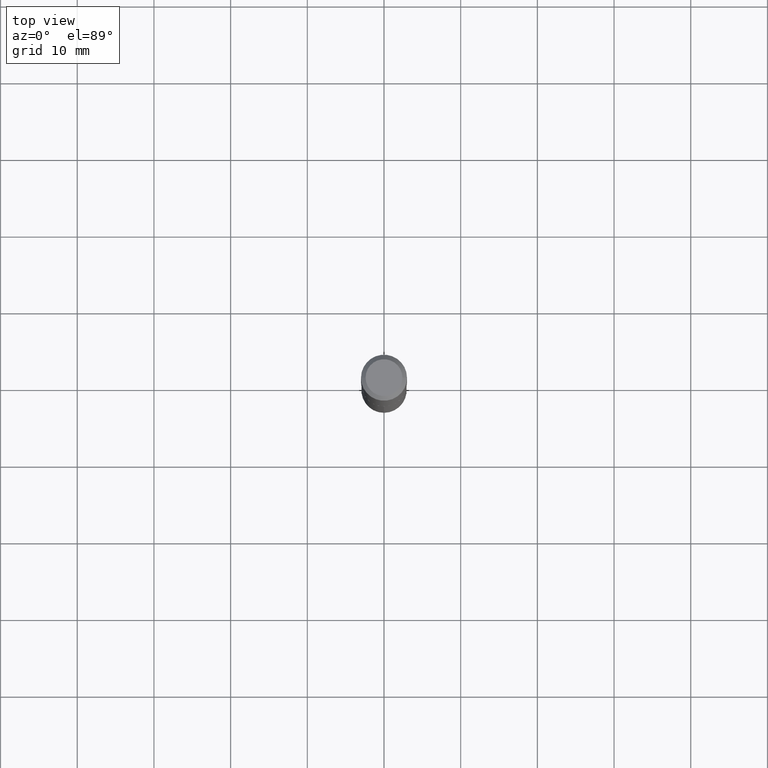
[diagram: clean part render]
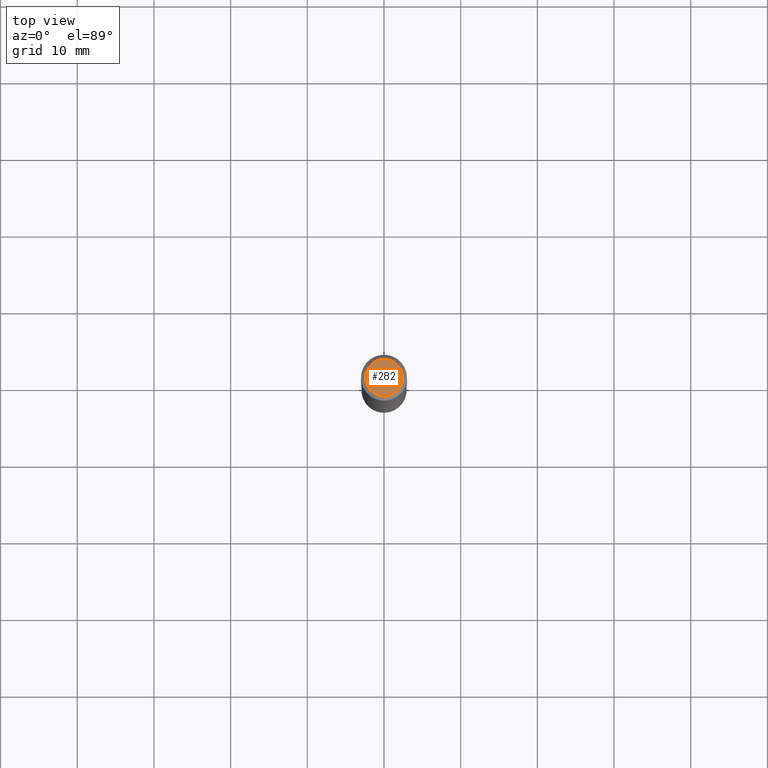
[diagram: same view with one face highlighted and labeled with its STEP entity id]
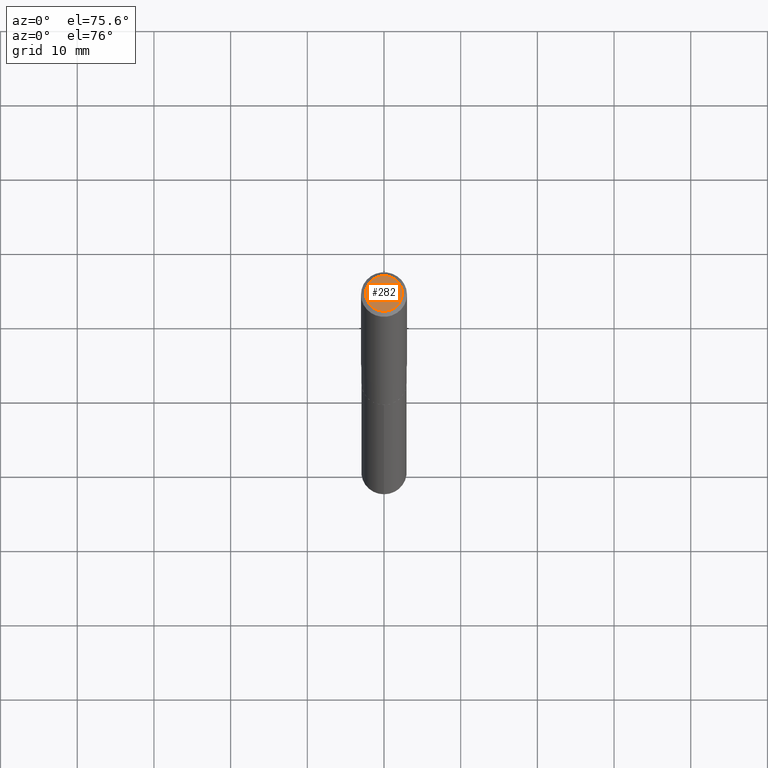
[diagram: same view with one face highlighted and labeled with its STEP entity id]
A machine part, top view. The second image highlights one B-rep face of the part: STEP entity #282.
A second angle (auxiliary view) of the same face is appended — the face is thin or edge-on in the first view.
In plain terms, the highlighted planar face has unit normal (0, -0, -1).
Its self-contained STEP definition (entity closure, byte-faithful):
#28 = CIRCLE ( 'NONE', #174, 0.09447999999999998066 ) ;
#52 = DIRECTION ( 'NONE',  ( -2.445468806185136597E-29, 3.491481338843145583E-15, 1.000000000000000000 ) ) ;
#83 = FACE_OUTER_BOUND ( 'NONE', #96, .T. ) ;
#90 = ORIENTED_EDGE ( 'NONE', *, *, #320, .T. ) ;
#96 = EDGE_LOOP ( 'NONE', ( #479, #90 ) ) ;
#129 = EDGE_CURVE ( 'NONE', #167, #214, #28, .T. ) ;
#159 = DIRECTION ( 'NONE',  ( 2.438088387897960049E-29, -3.491481338843145188E-15, -1.000000000000000000 ) ) ;
#167 = VERTEX_POINT ( 'NONE', #168 ) ;
#168 = CARTESIAN_POINT ( 'NONE',  ( -0.09447999999999998066, 7.009847083995354710E-16, -1.928573779297727792E-17 ) ) ;
#170 = CIRCLE ( 'NONE', #442, 0.09447999999999998066 ) ;
#174 = AXIS2_PLACEMENT_3D ( 'NONE', #315, #467, #427 ) ;
#180 = AXIS2_PLACEMENT_3D ( 'NONE', #488, #159, #230 ) ;
#186 = CARTESIAN_POINT ( 'NONE',  ( 0.09447999999999998066, -7.704367267948738690E-16, -1.928573779296752193E-17 ) ) ;
#214 = VERTEX_POINT ( 'NONE', #186 ) ;
#230 = DIRECTION ( 'NONE',  ( -1.000000000000000000, 6.982962677686265922E-15, -4.876176775795935793E-29 ) ) ;
#280 = DIRECTION ( 'NONE',  ( 1.000000000000000000, -6.982962677686267499E-15, 4.875432709231658792E-29 ) ) ;
#282 = ADVANCED_FACE ( 'NONE', ( #83 ), #342, .F. ) ;
#315 = CARTESIAN_POINT ( 'NONE',  ( 4.716267017698007905E-46, -6.733579360998555036E-32, -1.928573779297252010E-17 ) ) ;
#320 = EDGE_CURVE ( 'NONE', #214, #167, #170, .T. ) ;
#342 = PLANE ( 'NONE',  #180 ) ;
#427 = DIRECTION ( 'NONE',  ( 1.000000000000000000, -6.982962677686267499E-15, 4.875432709231658792E-29 ) ) ;
#432 = CARTESIAN_POINT ( 'NONE',  ( 4.716267017698007905E-46, -6.733579360998555036E-32, -1.928573779297252010E-17 ) ) ;
#442 = AXIS2_PLACEMENT_3D ( 'NONE', #432, #52, #280 ) ;
#467 = DIRECTION ( 'NONE',  ( -2.445468806185136597E-29, 3.491481338843145583E-15, 1.000000000000000000 ) ) ;
#479 = ORIENTED_EDGE ( 'NONE', *, *, #129, .T. ) ;
#488 = CARTESIAN_POINT ( 'NONE',  ( 2.358133508849003952E-46, -3.366789680499277518E-32, -9.642868896486260050E-18 ) ) ;